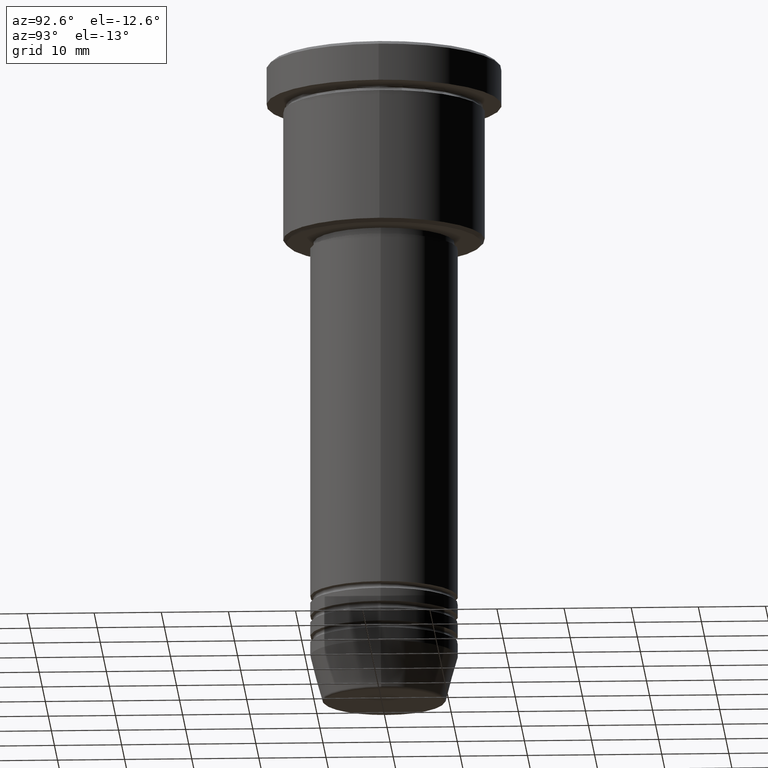
[diagram: clean part render]
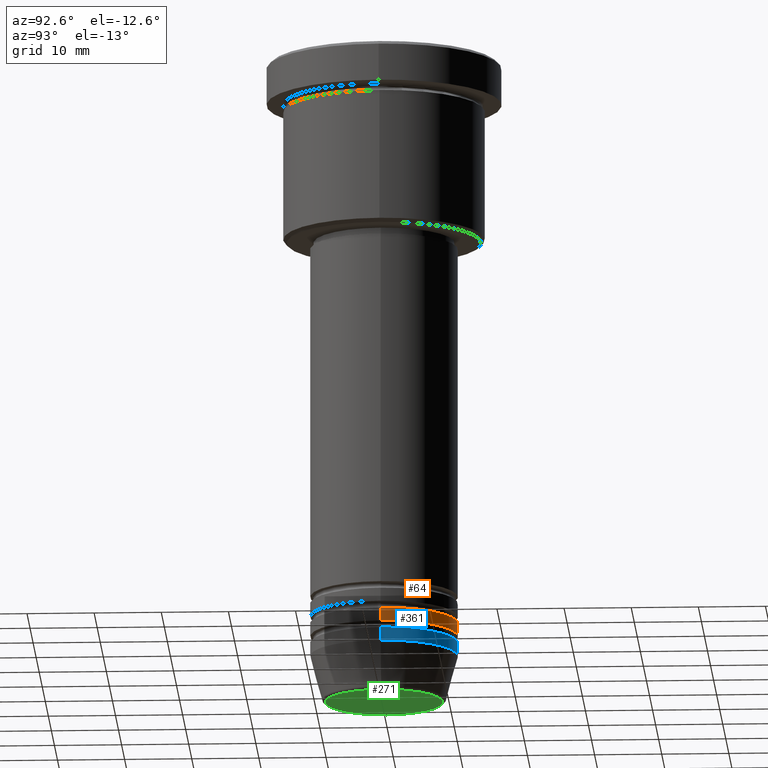
[diagram: same view with three faces highlighted in distinct colors, each labeled with its STEP entity id]
A machine part, auxiliary view with three faces highlighted in distinct colors.
Their STEP definitions:

[orange] entity #64 — the highlighted cylindrical surface (partial cylindrical patch) has radius 11 mm, axis along (-0, -0, 1).
#7 = CYLINDRICAL_SURFACE ( 'NONE', #144, 11.00000000000000000 ) ;
#16 = VERTEX_POINT ( 'NONE', #276 ) ;
#64 = ADVANCED_FACE ( 'NONE', ( #566 ), #7, .T. ) ;
#114 = VERTEX_POINT ( 'NONE', #449 ) ;
#115 = CARTESIAN_POINT ( 'NONE',  ( -11.00000000000000000, 1.347111479062088405E-15, 0.000000000000000000 ) ) ;
#128 = CIRCLE ( 'NONE', #911, 11.00000000000000000 ) ;
#137 = DIRECTION ( 'NONE',  ( -0.000000000000000000, -0.000000000000000000, 1.000000000000000000 ) ) ;
#144 = AXIS2_PLACEMENT_3D ( 'NONE', #666, #567, #295 ) ;
#237 = CARTESIAN_POINT ( 'NONE',  ( 11.00000000000000000, 0.000000000000000000, -86.99999999999998579 ) ) ;
#251 = ORIENTED_EDGE ( 'NONE', *, *, #415, .T. ) ;
#276 = CARTESIAN_POINT ( 'NONE',  ( -11.00000000000000000, 1.347111479062088405E-15, -86.99999999999998579 ) ) ;
#277 = ORIENTED_EDGE ( 'NONE', *, *, #715, .T. ) ;
#295 = DIRECTION ( 'NONE',  ( 1.000000000000000000, 0.000000000000000000, 0.000000000000000000 ) ) ;
#299 = CARTESIAN_POINT ( 'NONE',  ( 11.00000000000000000, 0.000000000000000000, 0.000000000000000000 ) ) ;
#333 = CARTESIAN_POINT ( 'NONE',  ( 11.00000000000000000, 0.000000000000000000, -84.99999999999997158 ) ) ;
#370 = DIRECTION ( 'NONE',  ( -0.000000000000000000, -0.000000000000000000, 1.000000000000000000 ) ) ;
#415 = EDGE_CURVE ( 'NONE', #454, #16, #422, .T. ) ;
#422 = CIRCLE ( 'NONE', #646, 11.00000000000000000 ) ;
#449 = CARTESIAN_POINT ( 'NONE',  ( -11.00000000000000000, 1.347111479062088405E-15, -84.99999999999997158 ) ) ;
#454 = VERTEX_POINT ( 'NONE', #237 ) ;
#465 = CARTESIAN_POINT ( 'NONE',  ( 0.000000000000000000, 0.000000000000000000, -84.99999999999997158 ) ) ;
#472 = ORIENTED_EDGE ( 'NONE', *, *, #528, .F. ) ;
#511 = EDGE_LOOP ( 'NONE', ( #251, #277, #472, #627 ) ) ;
#522 = EDGE_CURVE ( 'NONE', #454, #683, #1014, .T. ) ;
#528 = EDGE_CURVE ( 'NONE', #683, #114, #128, .T. ) ;
#566 = FACE_OUTER_BOUND ( 'NONE', #511, .T. ) ;
#567 = DIRECTION ( 'NONE',  ( -0.000000000000000000, -0.000000000000000000, 1.000000000000000000 ) ) ;
#587 = LINE ( 'NONE', #115, #1122 ) ;
#627 = ORIENTED_EDGE ( 'NONE', *, *, #522, .F. ) ;
#646 = AXIS2_PLACEMENT_3D ( 'NONE', #694, #137, #677 ) ;
#666 = CARTESIAN_POINT ( 'NONE',  ( 0.000000000000000000, 0.000000000000000000, 0.000000000000000000 ) ) ;
#677 = DIRECTION ( 'NONE',  ( 1.000000000000000000, 0.000000000000000000, 0.000000000000000000 ) ) ;
#683 = VERTEX_POINT ( 'NONE', #333 ) ;
#694 = CARTESIAN_POINT ( 'NONE',  ( 0.000000000000000000, 0.000000000000000000, -86.99999999999998579 ) ) ;
#715 = EDGE_CURVE ( 'NONE', #16, #114, #587, .T. ) ;
#841 = DIRECTION ( 'NONE',  ( -0.000000000000000000, -0.000000000000000000, 1.000000000000000000 ) ) ;
#845 = DIRECTION ( 'NONE',  ( 1.000000000000000000, 0.000000000000000000, 0.000000000000000000 ) ) ;
#861 = DIRECTION ( 'NONE',  ( -0.000000000000000000, -0.000000000000000000, 1.000000000000000000 ) ) ;
#870 = VECTOR ( 'NONE', #370, 1000.000000000000000 ) ;
#911 = AXIS2_PLACEMENT_3D ( 'NONE', #465, #841, #845 ) ;
#1014 = LINE ( 'NONE', #299, #870 ) ;
#1122 = VECTOR ( 'NONE', #861, 1000.000000000000000 ) ;

[blue] entity #361 — the highlighted cylindrical surface (partial cylindrical patch) has radius 11 mm, axis along (-0, -0, 1).
#5 = VERTEX_POINT ( 'NONE', #656 ) ;
#15 = CIRCLE ( 'NONE', #1069, 11.00000000000000000 ) ;
#21 = AXIS2_PLACEMENT_3D ( 'NONE', #308, #59, #424 ) ;
#59 = DIRECTION ( 'NONE',  ( -0.000000000000000000, -0.000000000000000000, 1.000000000000000000 ) ) ;
#96 = CARTESIAN_POINT ( 'NONE',  ( 11.00000000000000000, 0.000000000000000000, -88.00000000000000000 ) ) ;
#117 = CARTESIAN_POINT ( 'NONE',  ( 11.00000000000000000, 0.000000000000000000, 0.000000000000000000 ) ) ;
#156 = ORIENTED_EDGE ( 'NONE', *, *, #293, .F. ) ;
#180 = DIRECTION ( 'NONE',  ( 1.000000000000000000, 0.000000000000000000, 0.000000000000000000 ) ) ;
#238 = LINE ( 'NONE', #117, #604 ) ;
#273 = DIRECTION ( 'NONE',  ( -0.000000000000000000, -0.000000000000000000, 1.000000000000000000 ) ) ;
#293 = EDGE_CURVE ( 'NONE', #5, #523, #238, .T. ) ;
#308 = CARTESIAN_POINT ( 'NONE',  ( 0.000000000000000000, 0.000000000000000000, 0.000000000000000000 ) ) ;
#313 = FACE_OUTER_BOUND ( 'NONE', #636, .T. ) ;
#358 = CIRCLE ( 'NONE', #831, 11.00000000000000000 ) ;
#361 = ADVANCED_FACE ( 'NONE', ( #313 ), #891, .T. ) ;
#424 = DIRECTION ( 'NONE',  ( 1.000000000000000000, 0.000000000000000000, 0.000000000000000000 ) ) ;
#455 = LINE ( 'NONE', #763, #658 ) ;
#506 = DIRECTION ( 'NONE',  ( -0.000000000000000000, -0.000000000000000000, 1.000000000000000000 ) ) ;
#523 = VERTEX_POINT ( 'NONE', #96 ) ;
#576 = DIRECTION ( 'NONE',  ( -0.000000000000000000, -0.000000000000000000, 1.000000000000000000 ) ) ;
#604 = VECTOR ( 'NONE', #506, 1000.000000000000000 ) ;
#636 = EDGE_LOOP ( 'NONE', ( #647, #1068, #807, #156 ) ) ;
#647 = ORIENTED_EDGE ( 'NONE', *, *, #1165, .T. ) ;
#656 = CARTESIAN_POINT ( 'NONE',  ( 11.00000000000000000, 0.000000000000000000, -90.00000000000000000 ) ) ;
#658 = VECTOR ( 'NONE', #273, 1000.000000000000000 ) ;
#734 = CARTESIAN_POINT ( 'NONE',  ( 0.000000000000000000, 0.000000000000000000, -90.00000000000000000 ) ) ;
#763 = CARTESIAN_POINT ( 'NONE',  ( -11.00000000000000000, 1.347111479062088405E-15, 0.000000000000000000 ) ) ;
#765 = CARTESIAN_POINT ( 'NONE',  ( -11.00000000000000000, 1.347111479062088405E-15, -90.00000000000000000 ) ) ;
#807 = ORIENTED_EDGE ( 'NONE', *, *, #815, .F. ) ;
#815 = EDGE_CURVE ( 'NONE', #523, #1002, #15, .T. ) ;
#826 = EDGE_CURVE ( 'NONE', #901, #1002, #455, .T. ) ;
#831 = AXIS2_PLACEMENT_3D ( 'NONE', #734, #1102, #924 ) ;
#868 = CARTESIAN_POINT ( 'NONE',  ( -11.00000000000000000, 1.347111479062088405E-15, -88.00000000000000000 ) ) ;
#891 = CYLINDRICAL_SURFACE ( 'NONE', #21, 11.00000000000000000 ) ;
#901 = VERTEX_POINT ( 'NONE', #765 ) ;
#924 = DIRECTION ( 'NONE',  ( 1.000000000000000000, 0.000000000000000000, 0.000000000000000000 ) ) ;
#1002 = VERTEX_POINT ( 'NONE', #868 ) ;
#1025 = CARTESIAN_POINT ( 'NONE',  ( 0.000000000000000000, 0.000000000000000000, -88.00000000000000000 ) ) ;
#1068 = ORIENTED_EDGE ( 'NONE', *, *, #826, .T. ) ;
#1069 = AXIS2_PLACEMENT_3D ( 'NONE', #1025, #576, #180 ) ;
#1102 = DIRECTION ( 'NONE',  ( -0.000000000000000000, -0.000000000000000000, 1.000000000000000000 ) ) ;
#1165 = EDGE_CURVE ( 'NONE', #5, #901, #358, .T. ) ;

[green] entity #271 — the highlighted planar face has unit normal (0, -0, 1).
#1 = VERTEX_POINT ( 'NONE', #446 ) ;
#56 = AXIS2_PLACEMENT_3D ( 'NONE', #928, #553, #453 ) ;
#129 = DIRECTION ( 'NONE',  ( 0.000000000000000000, -0.000000000000000000, 1.000000000000000000 ) ) ;
#235 = EDGE_CURVE ( 'NONE', #1, #1027, #460, .T. ) ;
#271 = ADVANCED_FACE ( 'NONE', ( #663 ), #1064, .F. ) ;
#398 = CIRCLE ( 'NONE', #56, 8.740692158992652949 ) ;
#419 = DIRECTION ( 'NONE',  ( 0.000000000000000000, 0.000000000000000000, -1.000000000000000000 ) ) ;
#446 = CARTESIAN_POINT ( 'NONE',  ( 8.740692158992652949, 0.000000000000000000, -97.00000000000000000 ) ) ;
#453 = DIRECTION ( 'NONE',  ( 1.000000000000000000, 0.000000000000000000, 0.000000000000000000 ) ) ;
#460 = CIRCLE ( 'NONE', #622, 8.740692158992652949 ) ;
#516 = CARTESIAN_POINT ( 'NONE',  ( 0.000000000000000000, 0.000000000000000000, -97.00000000000000000 ) ) ;
#553 = DIRECTION ( 'NONE',  ( 0.000000000000000000, 0.000000000000000000, -1.000000000000000000 ) ) ;
#622 = AXIS2_PLACEMENT_3D ( 'NONE', #516, #419, #1066 ) ;
#663 = FACE_OUTER_BOUND ( 'NONE', #872, .T. ) ;
#678 = DIRECTION ( 'NONE',  ( 1.000000000000000000, 0.000000000000000000, 0.000000000000000000 ) ) ;
#686 = CARTESIAN_POINT ( 'NONE',  ( 0.000000000000000000, 0.000000000000000000, -97.00000000000000000 ) ) ;
#853 = AXIS2_PLACEMENT_3D ( 'NONE', #686, #129, #678 ) ;
#872 = EDGE_LOOP ( 'NONE', ( #1117, #1173 ) ) ;
#928 = CARTESIAN_POINT ( 'NONE',  ( 0.000000000000000000, 0.000000000000000000, -97.00000000000000000 ) ) ;
#1027 = VERTEX_POINT ( 'NONE', #1042 ) ;
#1042 = CARTESIAN_POINT ( 'NONE',  ( -8.740692158992652949, 1.099999016768739259E-15, -97.00000000000000000 ) ) ;
#1064 = PLANE ( 'NONE',  #853 ) ;
#1066 = DIRECTION ( 'NONE',  ( 1.000000000000000000, 0.000000000000000000, 0.000000000000000000 ) ) ;
#1117 = ORIENTED_EDGE ( 'NONE', *, *, #235, .T. ) ;
#1133 = EDGE_CURVE ( 'NONE', #1027, #1, #398, .T. ) ;
#1173 = ORIENTED_EDGE ( 'NONE', *, *, #1133, .T. ) ;